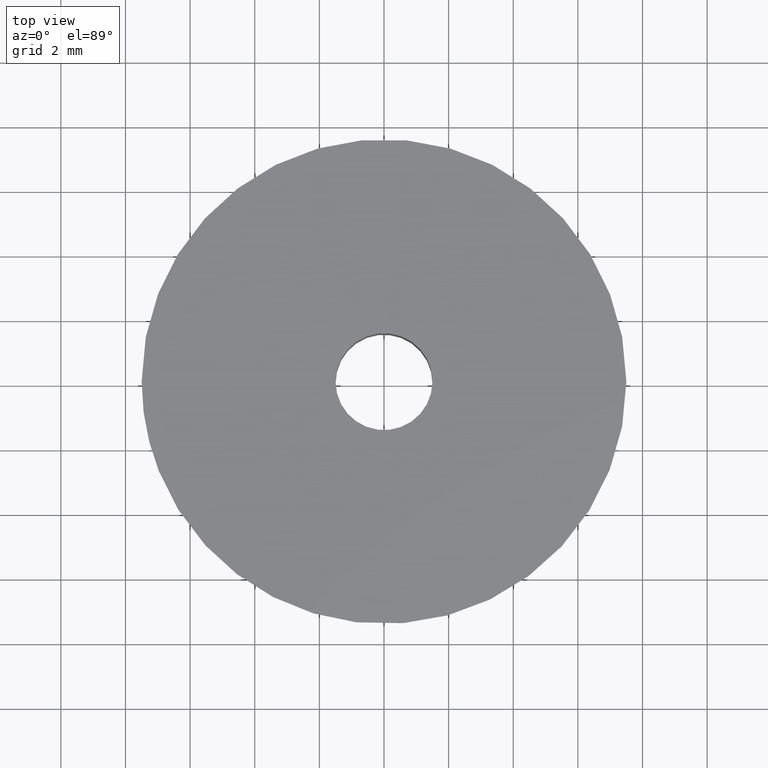
[diagram: clean part render]
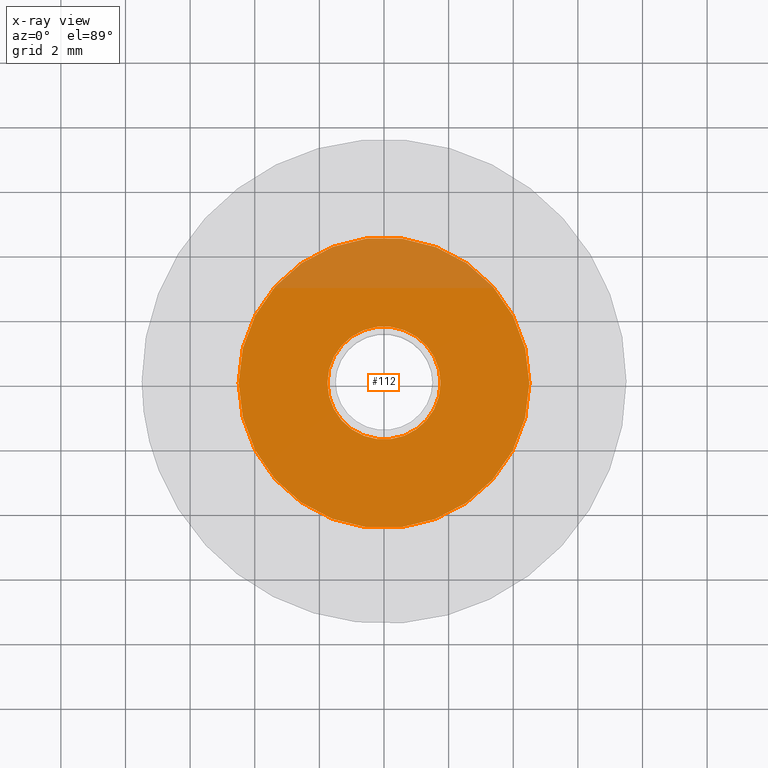
[diagram: x-ray — body ghosted, one internal face saturated and labeled with its STEP entity id]
A machine part, top view, then the same camera in x-ray: the body is ghosted and one INTERNAL B-rep face — a face not visible from any outside direction — is saturated and labeled: STEP entity #112.
In plain terms, the highlighted planar face has unit normal (0, 0, -1).
Its self-contained STEP definition (entity closure, byte-faithful):
#112=ADVANCED_FACE('',(#136,#137),#135,.F.);
#135=PLANE('',#375);
#136=FACE_OUTER_BOUND('',#376,.T.);
#137=FACE_BOUND('',#377,.T.);
#372=CARTESIAN_POINT('',(1.03500000000E+001,-9.35307436086E+000,5.50000000000E+000));
#373=DIRECTION('',(0.00000000000E+000,0.00000000000E+000,-1.00000000000E+000));
#374=DIRECTION('',(-1.00000000000E+000,0.00000000000E+000,0.00000000000E+000));
#375=AXIS2_PLACEMENT_3D('',#372,#373,#374);
#376=EDGE_LOOP('',(#548,#549,#550));
#377=EDGE_LOOP('',(#551,#552,#553));
#548=ORIENTED_EDGE('',*,*,#682,.F.);
#549=ORIENTED_EDGE('',*,*,#683,.F.);
#550=ORIENTED_EDGE('',*,*,#684,.F.);
#551=ORIENTED_EDGE('',*,*,#685,.T.);
#552=ORIENTED_EDGE('',*,*,#686,.T.);
#553=ORIENTED_EDGE('',*,*,#687,.T.);
#682=EDGE_CURVE('',#749,#750,#751,.T.);
#683=EDGE_CURVE('',#757,#749,#758,.T.);
#684=EDGE_CURVE('',#750,#757,#764,.T.);
#685=EDGE_CURVE('',#770,#771,#772,.T.);
#686=EDGE_CURVE('',#771,#778,#779,.T.);
#687=EDGE_CURVE('',#778,#770,#785,.T.);
#749=VERTEX_POINT('',#1202);
#750=VERTEX_POINT('',#1203);
#751=CIRCLE('',#1207,4.50000000000E+000);
#757=VERTEX_POINT('',#1208);
#758=CIRCLE('',#1212,4.50000000000E+000);
#764=CIRCLE('',#1216,4.50000000000E+000);
#770=VERTEX_POINT('',#1217);
#771=VERTEX_POINT('',#1218);
#772=CIRCLE('',#1222,1.75000000001E+000);
#778=VERTEX_POINT('',#1223);
#779=CIRCLE('',#1227,1.75000000001E+000);
#785=CIRCLE('',#1231,1.75000000001E+000);
#1202=CARTESIAN_POINT('',(5.31154054643E-001,-4.46854286879E+000,5.50000000000E+000));
#1203=CARTESIAN_POINT('',(-4.49999999999E+000,-2.22044604925E-016,5.50000000000E+000));
#1204=CARTESIAN_POINT('',(3.82005538313E-012,1.73550063209E-012,5.50000000000E+000));
#1205=DIRECTION('',(1.10870539796E-015,1.31785246723E-016,-1.00000000000E+000));
#1206=DIRECTION('',(-1.00000000000E+000,-3.85358411847E-013,-1.10870539796E-015));
#1207=AXIS2_PLACEMENT_3D('',#1204,#1205,#1206);
#1208=CARTESIAN_POINT('',(-5.31926370051E-001,4.46845099971E+000,5.50000000000E+000));
#1209=CARTESIAN_POINT('',(3.82005538313E-012,1.73550063209E-012,5.50000000000E+000));
#1210=DIRECTION('',(1.10870539796E-015,1.31785246723E-016,-1.00000000000E+000));
#1211=DIRECTION('',(-1.00000000000E+000,-3.85358411847E-013,-1.10870539796E-015));
#1212=AXIS2_PLACEMENT_3D('',#1209,#1210,#1211);
#1213=CARTESIAN_POINT('',(3.82005538313E-012,1.73550063209E-012,5.50000000000E+000));
#1214=DIRECTION('',(1.10870539796E-015,1.31785246723E-016,-1.00000000000E+000));
#1215=DIRECTION('',(-1.00000000000E+000,-3.85358411847E-013,-1.10870539796E-015));
#1216=AXIS2_PLACEMENT_3D('',#1213,#1214,#1215);
#1217=CARTESIAN_POINT('',(-1.75000000002E+000,7.73840053637E-018,5.50000000000E+000));
#1218=CARTESIAN_POINT('',(-2.06860317407E-001,1.73773093693E+000,5.50000000000E+000));
#1219=CARTESIAN_POINT('',(-9.27413701390E-012,8.72446559441E-012,5.50000000000E+000));
#1220=DIRECTION('',(-1.52259157662E-015,-1.43492962747E-042,-1.00000000000E+000));
#1221=DIRECTION('',(-1.00000000000E+000,-4.98528202849E-012,1.52259157662E-015));
#1222=AXIS2_PLACEMENT_3D('',#1219,#1220,#1221);
#1223=CARTESIAN_POINT('',(2.06559275158E-001,-1.73776674667E+000,5.50000000000E+000));
#1224=CARTESIAN_POINT('',(-9.27413701390E-012,8.72446559441E-012,5.50000000000E+000));
#1225=DIRECTION('',(-1.52259157662E-015,-1.43492962747E-042,-1.00000000000E+000));
#1226=DIRECTION('',(-1.00000000000E+000,-4.98528202849E-012,1.52259157662E-015));
#1227=AXIS2_PLACEMENT_3D('',#1224,#1225,#1226);
#1228=CARTESIAN_POINT('',(-9.27413701390E-012,8.72446559441E-012,5.50000000000E+000));
#1229=DIRECTION('',(-1.52259157662E-015,-1.43492962747E-042,-1.00000000000E+000));
#1230=DIRECTION('',(-1.00000000000E+000,-4.98528202849E-012,1.52259157662E-015));
#1231=AXIS2_PLACEMENT_3D('',#1228,#1229,#1230);